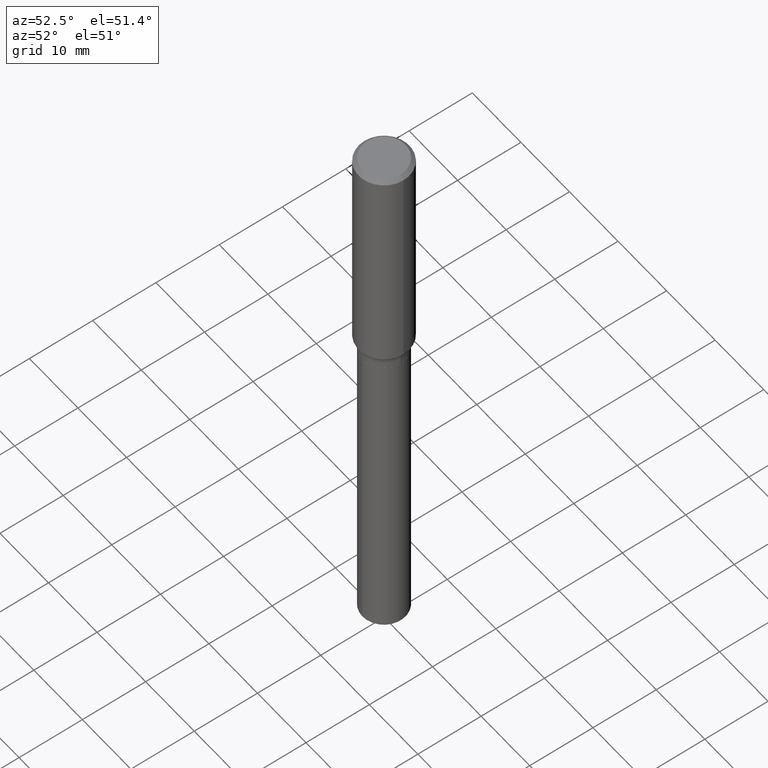
[diagram: clean part render]
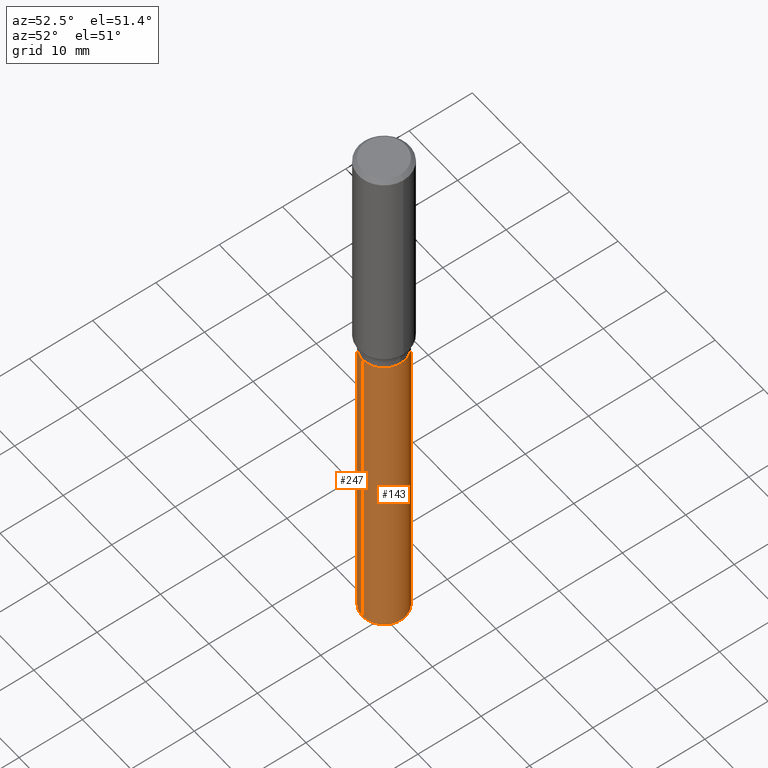
[diagram: same view with one multi-face feature highlighted, each face labeled with its STEP entity id]
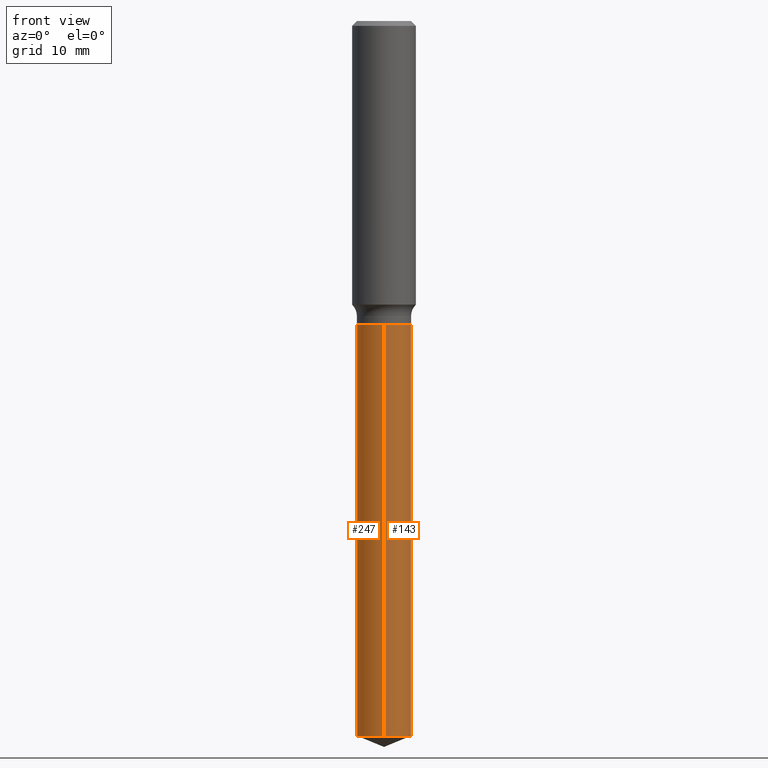
[diagram: same view with one multi-face feature highlighted, each face labeled with its STEP entity id]
A machine part, auxiliary view. The highlighted faces form ONE feature: a constant-radius fillet chain: 2 tangent blend faces with common blend radius 3.3998 mm. The faces share edges in the B-rep.
A second angle (front view) of the same feature is appended — it is thin or edge-on in the first view.
Their STEP definitions:
[1] entity #247 (Cylinder):
#1 = AXIS2_PLACEMENT_3D ( 'NONE', #333, #373, #66 ) ;
#26 = AXIS2_PLACEMENT_3D ( 'NONE', #407, #134, #285 ) ;
#57 = VERTEX_POINT ( 'NONE', #417 ) ;
#63 = DIRECTION ( 'NONE',  ( -2.445445601509706497E-29, 3.491514569259089389E-15, 1.000000000000000000 ) ) ;
#66 = DIRECTION ( 'NONE',  ( -6.982962677686265133E-15, -1.000000000000000000, 4.081954417130015942E-15 ) ) ;
#120 = LINE ( 'NONE', #151, #335 ) ;
#134 = DIRECTION ( 'NONE',  ( -2.445445601509706497E-29, 3.491514569259089389E-15, 1.000000000000000000 ) ) ;
#137 = AXIS2_PLACEMENT_3D ( 'NONE', #402, #429, #466 ) ;
#149 = EDGE_CURVE ( 'NONE', #57, #394, #120, .T. ) ;
#151 = CARTESIAN_POINT ( 'NONE',  ( 9.510614518149305606E-16, 0.1338499999999947787, -1.496400000000000841 ) ) ;
#160 = CARTESIAN_POINT ( 'NONE',  ( -9.346695544082205515E-16, -0.1338500000000123480, -3.528921089671963607 ) ) ;
#164 = CYLINDRICAL_SURFACE ( 'NONE', #137, 0.1338499999999999968 ) ;
#177 = LINE ( 'NONE', #217, #431 ) ;
#193 = ORIENTED_EDGE ( 'NONE', *, *, #368, .F. ) ;
#217 = CARTESIAN_POINT ( 'NONE',  ( -9.346695544082700525E-16, -0.1338500000000052148, -1.496399999999999730 ) ) ;
#247 = ADVANCED_FACE ( 'NONE', ( #400 ), #164, .T. ) ;
#281 = ORIENTED_EDGE ( 'NONE', *, *, #149, .F. ) ;
#285 = DIRECTION ( 'NONE',  ( -6.982962677686265133E-15, -1.000000000000000000, 4.081954417130015942E-15 ) ) ;
#296 = VERTEX_POINT ( 'NONE', #323 ) ;
#300 = DIRECTION ( 'NONE',  ( -2.445445601509706497E-29, 3.491514569259089389E-15, 1.000000000000000000 ) ) ;
#310 = CIRCLE ( 'NONE', #1, 0.1338499999999999968 ) ;
#323 = CARTESIAN_POINT ( 'NONE',  ( -9.346695544082700525E-16, -0.1338500000000052148, -1.496399999999999730 ) ) ;
#333 = CARTESIAN_POINT ( 'NONE',  ( 3.659399521575438742E-29, -5.224652675444883351E-15, -1.496400000000000174 ) ) ;
#335 = VECTOR ( 'NONE', #300, 39.37007874015748143 ) ;
#343 = CIRCLE ( 'NONE', #26, 0.1338499999999999968 ) ;
#350 = VERTEX_POINT ( 'NONE', #160 ) ;
#368 = EDGE_CURVE ( 'NONE', #394, #296, #310, .T. ) ;
#369 = CARTESIAN_POINT ( 'NONE',  ( 9.510614518149806532E-16, 0.1338499999999947510, -1.496400000000000841 ) ) ;
#373 = DIRECTION ( 'NONE',  ( -2.445445601509706497E-29, 3.491514569259089389E-15, 1.000000000000000000 ) ) ;
#394 = VERTEX_POINT ( 'NONE', #369 ) ;
#399 = EDGE_CURVE ( 'NONE', #350, #296, #177, .T. ) ;
#400 = FACE_OUTER_BOUND ( 'NONE', #470, .T. ) ;
#402 = CARTESIAN_POINT ( 'NONE',  ( 3.659399521575438742E-29, -5.224652675444883351E-15, -1.496400000000000174 ) ) ;
#406 = ORIENTED_EDGE ( 'NONE', *, *, #486, .T. ) ;
#407 = CARTESIAN_POINT ( 'NONE',  ( 8.629819280289458970E-29, -1.232122967236090696E-14, -3.528921089671964495 ) ) ;
#417 = CARTESIAN_POINT ( 'NONE',  ( 9.510614518149802588E-16, 0.1338499999999877010, -3.528921089671964939 ) ) ;
#429 = DIRECTION ( 'NONE',  ( -2.445445601509706497E-29, 3.491514569259089389E-15, 1.000000000000000000 ) ) ;
#431 = VECTOR ( 'NONE', #63, 39.37007874015748143 ) ;
#456 = ORIENTED_EDGE ( 'NONE', *, *, #399, .T. ) ;
#466 = DIRECTION ( 'NONE',  ( -6.982962677686265133E-15, -1.000000000000000000, 4.081954417130015942E-15 ) ) ;
#470 = EDGE_LOOP ( 'NONE', ( #281, #406, #456, #193 ) ) ;
#486 = EDGE_CURVE ( 'NONE', #57, #350, #343, .T. ) ;
[2] entity #143 (Cylinder):
#4 = DIRECTION ( 'NONE',  ( -2.445445601509706497E-29, 3.491514569259089389E-15, 1.000000000000000000 ) ) ;
#34 = EDGE_CURVE ( 'NONE', #350, #57, #222, .T. ) ;
#39 = DIRECTION ( 'NONE',  ( -2.445445601509706497E-29, 3.491514569259089389E-15, 1.000000000000000000 ) ) ;
#40 = AXIS2_PLACEMENT_3D ( 'NONE', #267, #39, #269 ) ;
#45 = ORIENTED_EDGE ( 'NONE', *, *, #34, .T. ) ;
#51 = AXIS2_PLACEMENT_3D ( 'NONE', #210, #287, #326 ) ;
#57 = VERTEX_POINT ( 'NONE', #417 ) ;
#63 = DIRECTION ( 'NONE',  ( -2.445445601509706497E-29, 3.491514569259089389E-15, 1.000000000000000000 ) ) ;
#120 = LINE ( 'NONE', #151, #335 ) ;
#143 = ADVANCED_FACE ( 'NONE', ( #186 ), #148, .T. ) ;
#148 = CYLINDRICAL_SURFACE ( 'NONE', #303, 0.1338499999999999968 ) ;
#149 = EDGE_CURVE ( 'NONE', #57, #394, #120, .T. ) ;
#151 = CARTESIAN_POINT ( 'NONE',  ( 9.510614518149305606E-16, 0.1338499999999947787, -1.496400000000000841 ) ) ;
#160 = CARTESIAN_POINT ( 'NONE',  ( -9.346695544082205515E-16, -0.1338500000000123480, -3.528921089671963607 ) ) ;
#177 = LINE ( 'NONE', #217, #431 ) ;
#186 = FACE_OUTER_BOUND ( 'NONE', #211, .T. ) ;
#202 = ORIENTED_EDGE ( 'NONE', *, *, #399, .F. ) ;
#210 = CARTESIAN_POINT ( 'NONE',  ( 3.659399521575438742E-29, -5.224652675444883351E-15, -1.496400000000000174 ) ) ;
#211 = EDGE_LOOP ( 'NONE', ( #45, #253, #348, #202 ) ) ;
#217 = CARTESIAN_POINT ( 'NONE',  ( -9.346695544082700525E-16, -0.1338500000000052148, -1.496399999999999730 ) ) ;
#222 = CIRCLE ( 'NONE', #40, 0.1338499999999999968 ) ;
#223 = CIRCLE ( 'NONE', #51, 0.1338499999999999968 ) ;
#253 = ORIENTED_EDGE ( 'NONE', *, *, #149, .T. ) ;
#265 = DIRECTION ( 'NONE',  ( -6.982962677686265133E-15, -1.000000000000000000, 4.081954417130015942E-15 ) ) ;
#267 = CARTESIAN_POINT ( 'NONE',  ( 8.629819280289458970E-29, -1.232122967236090696E-14, -3.528921089671964495 ) ) ;
#269 = DIRECTION ( 'NONE',  ( -6.982962677686265133E-15, -1.000000000000000000, 4.081954417130015942E-15 ) ) ;
#287 = DIRECTION ( 'NONE',  ( -2.445445601509706497E-29, 3.491514569259089389E-15, 1.000000000000000000 ) ) ;
#296 = VERTEX_POINT ( 'NONE', #323 ) ;
#300 = DIRECTION ( 'NONE',  ( -2.445445601509706497E-29, 3.491514569259089389E-15, 1.000000000000000000 ) ) ;
#303 = AXIS2_PLACEMENT_3D ( 'NONE', #376, #4, #265 ) ;
#323 = CARTESIAN_POINT ( 'NONE',  ( -9.346695544082700525E-16, -0.1338500000000052148, -1.496399999999999730 ) ) ;
#326 = DIRECTION ( 'NONE',  ( -6.982962677686265133E-15, -1.000000000000000000, 4.081954417130015942E-15 ) ) ;
#335 = VECTOR ( 'NONE', #300, 39.37007874015748143 ) ;
#348 = ORIENTED_EDGE ( 'NONE', *, *, #380, .F. ) ;
#350 = VERTEX_POINT ( 'NONE', #160 ) ;
#369 = CARTESIAN_POINT ( 'NONE',  ( 9.510614518149806532E-16, 0.1338499999999947510, -1.496400000000000841 ) ) ;
#376 = CARTESIAN_POINT ( 'NONE',  ( 3.659399521575438742E-29, -5.224652675444883351E-15, -1.496400000000000174 ) ) ;
#380 = EDGE_CURVE ( 'NONE', #296, #394, #223, .T. ) ;
#394 = VERTEX_POINT ( 'NONE', #369 ) ;
#399 = EDGE_CURVE ( 'NONE', #350, #296, #177, .T. ) ;
#417 = CARTESIAN_POINT ( 'NONE',  ( 9.510614518149802588E-16, 0.1338499999999877010, -3.528921089671964939 ) ) ;
#431 = VECTOR ( 'NONE', #63, 39.37007874015748143 ) ;